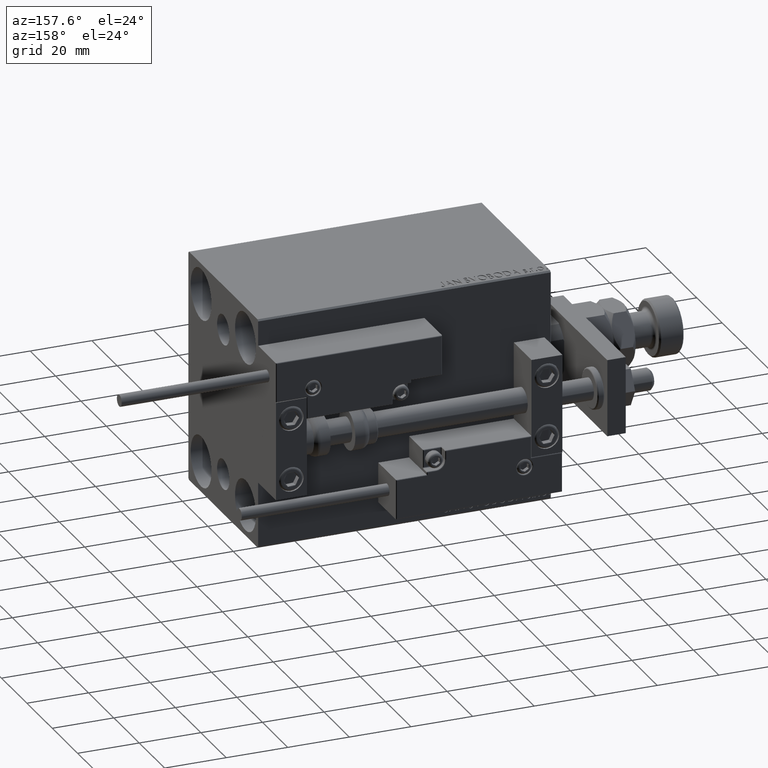
[diagram: clean part render]
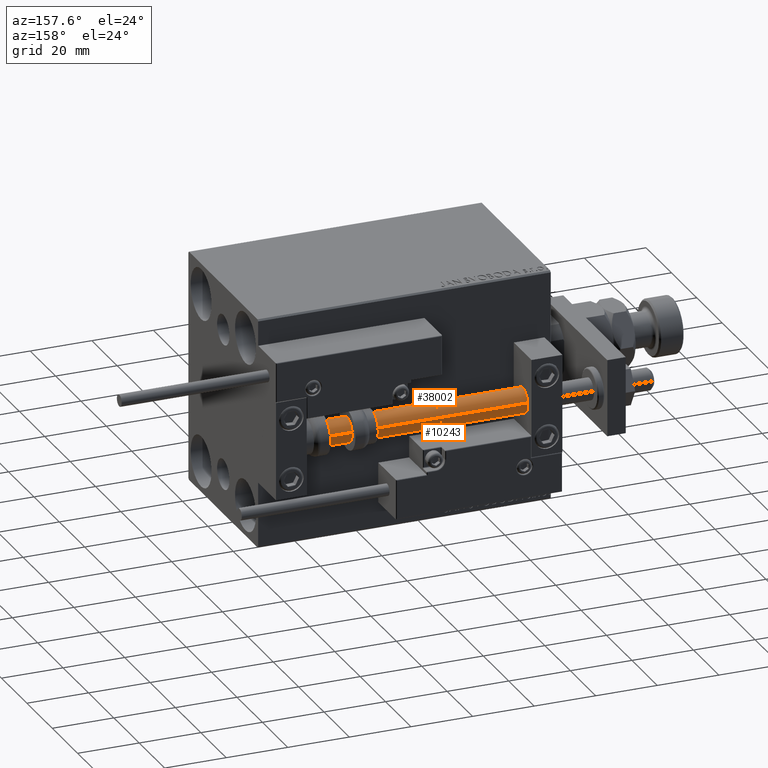
[diagram: same view with one multi-face feature highlighted, each face labeled with its STEP entity id]
A machine part, auxiliary view. The highlighted faces form ONE feature: a constant-radius fillet chain: 2 tangent blend faces with common blend radius 4 mm. The faces share edges in the B-rep.
Their STEP definitions:
[1] entity #10243 (Cylinder):
#2379 = EDGE_CURVE ( 'NONE', #27618, #16040, #32643, .T. ) ;
#2652 = EDGE_CURVE ( 'NONE', #3628, #42623, #46801, .T. ) ;
#3628 = VERTEX_POINT ( 'NONE', #33295 ) ;
#4761 = LINE ( 'NONE', #13327, #10402 ) ;
#6140 = CARTESIAN_POINT ( 'NONE',  ( 4.000000000000000000, 4.898587196589412829E-16, 2.000000000000029310 ) ) ;
#6383 = CARTESIAN_POINT ( 'NONE',  ( 4.000000000000000000, 4.898587196589412829E-16, 95.00000000000000000 ) ) ;
#8324 = LINE ( 'NONE', #48258, #39796 ) ;
#10243 = ADVANCED_FACE ( 'NONE', ( #22014 ), #13426, .T. ) ;
#10295 = CARTESIAN_POINT ( 'NONE',  ( 0.000000000000000000, 0.000000000000000000, 95.00000000000000000 ) ) ;
#10402 = VECTOR ( 'NONE', #13072, 1000.000000000000000 ) ;
#10408 = DIRECTION ( 'NONE',  ( 0.000000000000000000, 0.000000000000000000, 1.000000000000000000 ) ) ;
#13072 = DIRECTION ( 'NONE',  ( -0.000000000000000000, -0.000000000000000000, -1.000000000000000000 ) ) ;
#13327 = CARTESIAN_POINT ( 'NONE',  ( -4.000000000000000000, 0.000000000000000000, 95.00000000000000000 ) ) ;
#13426 = CYLINDRICAL_SURFACE ( 'NONE', #50111, 4.000000000000000000 ) ;
#14920 = DIRECTION ( 'NONE',  ( -0.000000000000000000, -0.000000000000000000, 1.000000000000000000 ) ) ;
#16040 = VERTEX_POINT ( 'NONE', #6383 ) ;
#19791 = DIRECTION ( 'NONE',  ( -0.000000000000000000, -0.000000000000000000, -1.000000000000000000 ) ) ;
#21136 = EDGE_CURVE ( 'NONE', #27618, #3628, #4761, .T. ) ;
#22014 = FACE_OUTER_BOUND ( 'NONE', #32271, .T. ) ;
#23246 = DIRECTION ( 'NONE',  ( 1.000000000000000000, 0.000000000000000000, 0.000000000000000000 ) ) ;
#23452 = AXIS2_PLACEMENT_3D ( 'NONE', #38310, #10408, #26286 ) ;
#26286 = DIRECTION ( 'NONE',  ( 1.000000000000000000, 0.000000000000000000, 0.000000000000000000 ) ) ;
#26900 = CARTESIAN_POINT ( 'NONE',  ( -4.000000000000000000, 0.000000000000000000, 95.00000000000000000 ) ) ;
#27618 = VERTEX_POINT ( 'NONE', #26900 ) ;
#27959 = EDGE_CURVE ( 'NONE', #16040, #42623, #8324, .T. ) ;
#31035 = ORIENTED_EDGE ( 'NONE', *, *, #2379, .F. ) ;
#32017 = ORIENTED_EDGE ( 'NONE', *, *, #21136, .T. ) ;
#32271 = EDGE_LOOP ( 'NONE', ( #34448, #31035, #32017, #32956 ) ) ;
#32643 = CIRCLE ( 'NONE', #23452, 4.000000000000000000 ) ;
#32956 = ORIENTED_EDGE ( 'NONE', *, *, #2652, .T. ) ;
#33295 = CARTESIAN_POINT ( 'NONE',  ( -4.000000000000000000, 0.000000000000000000, 2.000000000000029310 ) ) ;
#34264 = DIRECTION ( 'NONE',  ( -0.000000000000000000, -0.000000000000000000, -1.000000000000000000 ) ) ;
#34448 = ORIENTED_EDGE ( 'NONE', *, *, #27959, .F. ) ;
#38310 = CARTESIAN_POINT ( 'NONE',  ( 0.000000000000000000, 0.000000000000000000, 95.00000000000000000 ) ) ;
#38928 = CARTESIAN_POINT ( 'NONE',  ( 0.000000000000000000, 0.000000000000000000, 2.000000000000029310 ) ) ;
#39796 = VECTOR ( 'NONE', #19791, 1000.000000000000000 ) ;
#42623 = VERTEX_POINT ( 'NONE', #6140 ) ;
#45279 = DIRECTION ( 'NONE',  ( -1.000000000000000000, 0.000000000000000000, 0.000000000000000000 ) ) ;
#46801 = CIRCLE ( 'NONE', #49322, 4.000000000000000000 ) ;
#48258 = CARTESIAN_POINT ( 'NONE',  ( 4.000000000000000000, 4.898587196589412829E-16, 95.00000000000000000 ) ) ;
#49322 = AXIS2_PLACEMENT_3D ( 'NONE', #38928, #14920, #23246 ) ;
#50111 = AXIS2_PLACEMENT_3D ( 'NONE', #10295, #34264, #45279 ) ;
[2] entity #38002 (Cylinder):
#3628 = VERTEX_POINT ( 'NONE', #33295 ) ;
#3769 = DIRECTION ( 'NONE',  ( -0.000000000000000000, -0.000000000000000000, 1.000000000000000000 ) ) ;
#4761 = LINE ( 'NONE', #13327, #10402 ) ;
#6140 = CARTESIAN_POINT ( 'NONE',  ( 4.000000000000000000, 4.898587196589412829E-16, 2.000000000000029310 ) ) ;
#6383 = CARTESIAN_POINT ( 'NONE',  ( 4.000000000000000000, 4.898587196589412829E-16, 95.00000000000000000 ) ) ;
#6994 = ORIENTED_EDGE ( 'NONE', *, *, #21136, .F. ) ;
#8324 = LINE ( 'NONE', #48258, #39796 ) ;
#9714 = AXIS2_PLACEMENT_3D ( 'NONE', #26520, #34357, #10389 ) ;
#10389 = DIRECTION ( 'NONE',  ( -1.000000000000000000, 0.000000000000000000, 0.000000000000000000 ) ) ;
#10402 = VECTOR ( 'NONE', #13072, 1000.000000000000000 ) ;
#10638 = CYLINDRICAL_SURFACE ( 'NONE', #9714, 4.000000000000000000 ) ;
#10915 = ORIENTED_EDGE ( 'NONE', *, *, #33552, .F. ) ;
#11147 = FACE_OUTER_BOUND ( 'NONE', #40624, .T. ) ;
#12087 = EDGE_CURVE ( 'NONE', #42623, #3628, #27630, .T. ) ;
#13072 = DIRECTION ( 'NONE',  ( -0.000000000000000000, -0.000000000000000000, -1.000000000000000000 ) ) ;
#13080 = DIRECTION ( 'NONE',  ( 0.000000000000000000, 0.000000000000000000, 1.000000000000000000 ) ) ;
#13327 = CARTESIAN_POINT ( 'NONE',  ( -4.000000000000000000, 0.000000000000000000, 95.00000000000000000 ) ) ;
#15211 = DIRECTION ( 'NONE',  ( 1.000000000000000000, 0.000000000000000000, 0.000000000000000000 ) ) ;
#16040 = VERTEX_POINT ( 'NONE', #6383 ) ;
#18342 = ORIENTED_EDGE ( 'NONE', *, *, #12087, .T. ) ;
#19791 = DIRECTION ( 'NONE',  ( -0.000000000000000000, -0.000000000000000000, -1.000000000000000000 ) ) ;
#21136 = EDGE_CURVE ( 'NONE', #27618, #3628, #4761, .T. ) ;
#26520 = CARTESIAN_POINT ( 'NONE',  ( 0.000000000000000000, 0.000000000000000000, 95.00000000000000000 ) ) ;
#26900 = CARTESIAN_POINT ( 'NONE',  ( -4.000000000000000000, 0.000000000000000000, 95.00000000000000000 ) ) ;
#27618 = VERTEX_POINT ( 'NONE', #26900 ) ;
#27630 = CIRCLE ( 'NONE', #43526, 4.000000000000000000 ) ;
#27959 = EDGE_CURVE ( 'NONE', #16040, #42623, #8324, .T. ) ;
#27975 = CARTESIAN_POINT ( 'NONE',  ( 0.000000000000000000, 0.000000000000000000, 2.000000000000029310 ) ) ;
#28970 = DIRECTION ( 'NONE',  ( 1.000000000000000000, 0.000000000000000000, 0.000000000000000000 ) ) ;
#29953 = CIRCLE ( 'NONE', #36635, 4.000000000000000000 ) ;
#33295 = CARTESIAN_POINT ( 'NONE',  ( -4.000000000000000000, 0.000000000000000000, 2.000000000000029310 ) ) ;
#33552 = EDGE_CURVE ( 'NONE', #16040, #27618, #29953, .T. ) ;
#34357 = DIRECTION ( 'NONE',  ( -0.000000000000000000, -0.000000000000000000, -1.000000000000000000 ) ) ;
#36635 = AXIS2_PLACEMENT_3D ( 'NONE', #45444, #13080, #28970 ) ;
#38002 = ADVANCED_FACE ( 'NONE', ( #11147 ), #10638, .T. ) ;
#39796 = VECTOR ( 'NONE', #19791, 1000.000000000000000 ) ;
#39833 = ORIENTED_EDGE ( 'NONE', *, *, #27959, .T. ) ;
#40624 = EDGE_LOOP ( 'NONE', ( #10915, #39833, #18342, #6994 ) ) ;
#42623 = VERTEX_POINT ( 'NONE', #6140 ) ;
#43526 = AXIS2_PLACEMENT_3D ( 'NONE', #27975, #3769, #15211 ) ;
#45444 = CARTESIAN_POINT ( 'NONE',  ( 0.000000000000000000, 0.000000000000000000, 95.00000000000000000 ) ) ;
#48258 = CARTESIAN_POINT ( 'NONE',  ( 4.000000000000000000, 4.898587196589412829E-16, 95.00000000000000000 ) ) ;